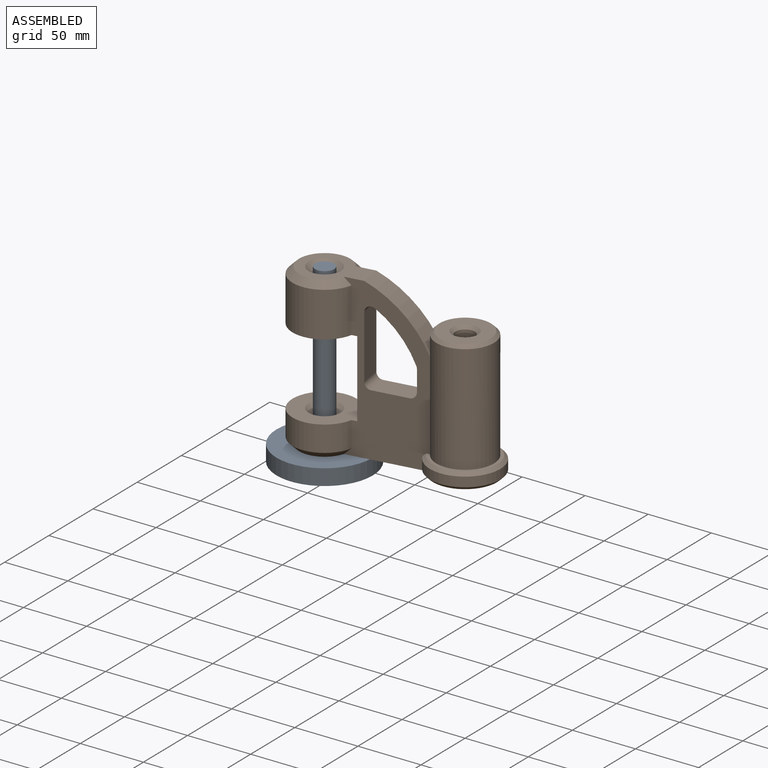
[diagram: assembled view]
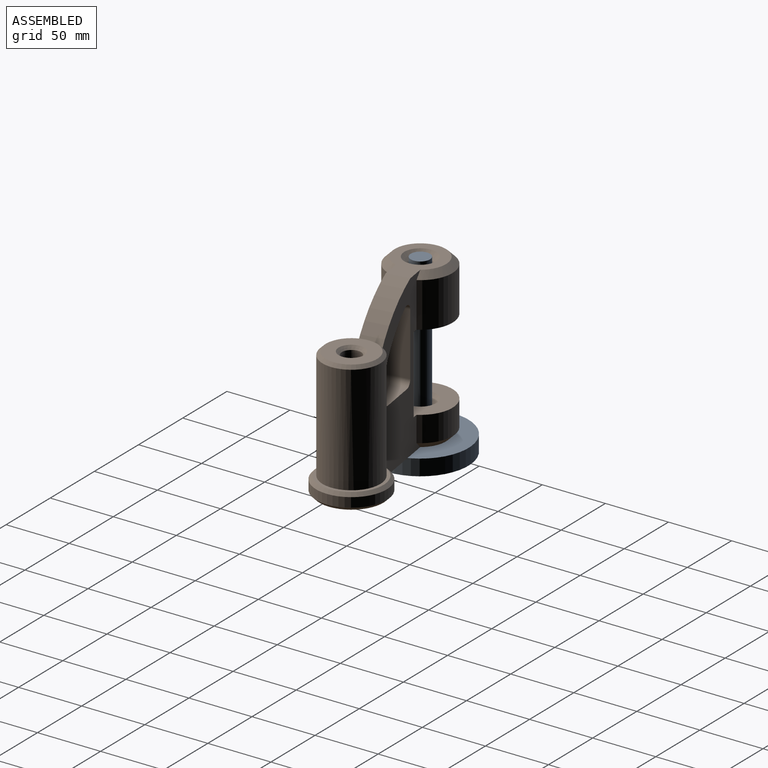
[diagram: assembled view, second angle]
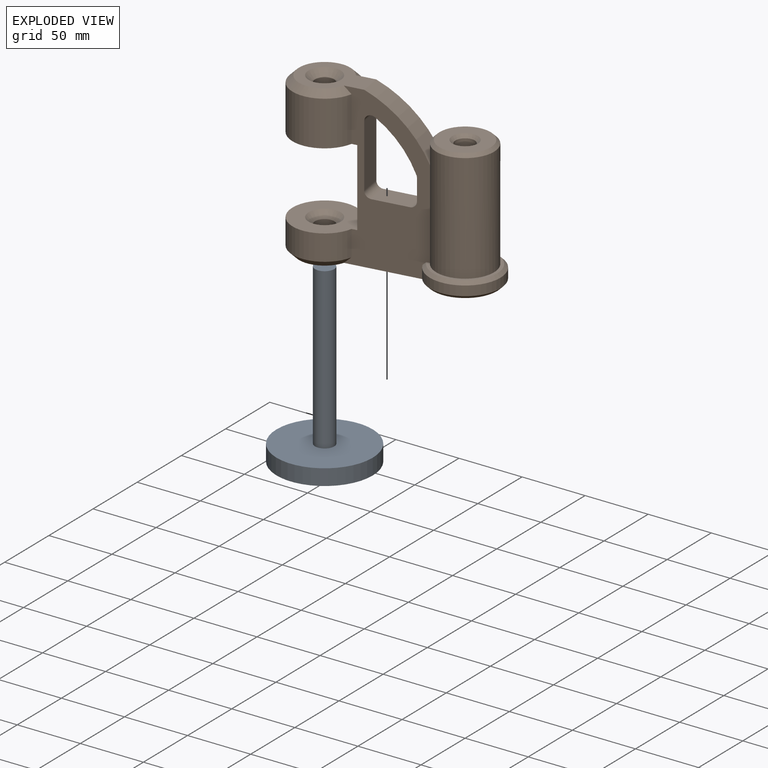
[diagram: exploded view]
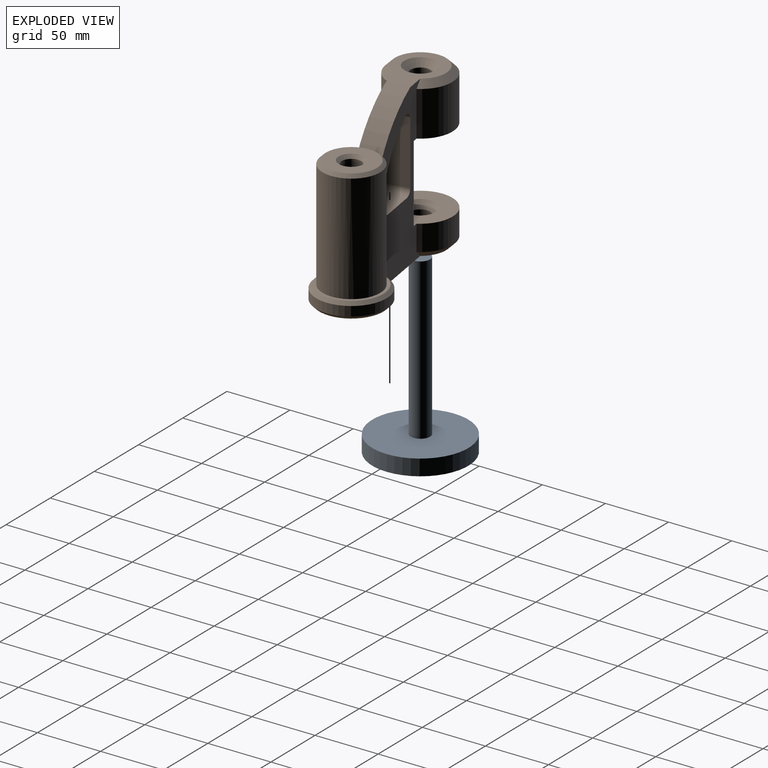
[diagram: exploded view, second angle]
ASSEMBLY  parts=2 mates=2
PART A: 5 faces, bbox 76.2x76.2x139.7 mm
  f0: cylinder r=7.62mm len=127mm, axis (0,0,-1), area 6080.5mm2, adj f1,f3
  f1: plane 15.24x15.24mm, normal (0,0,1), area 182.4mm2, adj f0
  f2: cylinder r=38.1mm len=76.2mm, axis (0,0,-1), area 3040.2mm2, adj f3,f4
  f3: plane 76.2x76.2mm, normal (0,0,1), area 4378mm2, adj f0,f2
  f4: plane 76.2x76.2mm, normal (0,0,-1), area 4560.4mm2, adj f2
PART B: 36 faces, bbox 155x55.9x127 mm
  f0: plane 127.04x62.31mm, normal (0,-1,0), area 4321.2mm2, adj f3,f5,f6,f7,f9,f11,f12,f13
  f1: plane 127.04x62.31mm, normal (0,1,0), area 4321.2mm2, adj f3,f5,f6,f7,f9,f11,f12,f13
  f2: cylinder r=7.62mm len=15.24mm, axis (0,0,-1), area 729.7mm2, adj f30,f32
  f3: cylinder r=25.4mm len=50.8mm, axis (0,0,-1), area 2873.8mm2, adj f0,f1,f17,f31
  f4: cylinder r=7.62mm len=30.48mm, axis (0,0,-1), area 1459.3mm2, adj f33,f34
  f5: cylinder r=25.4mm len=50.8mm, axis (0,0,-1), area 5029.2mm2, adj f0,f1,f18,f35
  f6: plane 53.34x40.64mm, normal (0,0,1), area 1028.2mm2, adj f0,f1,f11,f34,f35
  f7: plane 147.32x50.8mm, normal (0,0,-1), area 3507.8mm2, adj f0,f1,f25,f27,f31,f32
  f8: cylinder r=7.62mm len=96.52mm, axis (0,0,-1), area 4621.2mm2, adj f27,f28
  f9: cylinder r=22.86mm len=86.36mm, axis (0,0,-1), area 11079.6mm2, adj f0,f1,f11,f23,f29
  f10: plane 40.64x40.64mm, normal (0,0,1), area 972.9mm2, adj f28,f29
  f11: cylinder r=88.9mm len=47.52mm, axis (0,1,0), area 1132.6mm2, adj f0,f1,f6,f9
  f12: plane 17.78x17.02mm, normal (-1,0,0), area 302.5mm2, adj f0,f1,f19,f22
  f13: plane 27.94x17.78mm, normal (0,0,1), area 496.8mm2, adj f0,f1,f19,f20
  f14: plane 49.87x17.78mm, normal (1,0,0), area 886.6mm2, adj f0,f1,f20,f21
  f15: cylinder r=76.2mm len=35.2mm, axis (0,1,0), area 834.7mm2, adj f0,f1,f21,f22
  f16: plane 60.96x17.78mm, normal (-1,0,0), area 1083.9mm2, adj f0,f1,f17,f18
  f17: plane 53.34x50.8mm, normal (0,0,1), area 1574.7mm2, adj f0,f1,f3,f16,f30
  f18: plane 53.34x50.8mm, normal (0,0,-1), area 1574.7mm2, adj f0,f1,f5,f16,f33
  f19: cylinder r=5.08mm len=17.78mm, axis (0,-1,0), area 141.9mm2, adj f0,f1,f12,f13
  f20: cylinder r=5.08mm len=17.78mm, axis (0,-1,0), area 141.9mm2, adj f0,f1,f13,f14
  f21: cylinder r=5.08mm len=17.78mm, axis (0,1,0), area 192.3mm2, adj f0,f1,f14,f15
  f22: cylinder r=5.08mm len=17.78mm, axis (0,1,0), area 35.8mm2, adj f0,f1,f12,f15
  f23: plane 50.8x49.19mm, normal (0,0,1), area 338.8mm2, adj f0,f1,f9,f26
  f24: cylinder r=27.94mm len=55.88mm, axis (0,0,-1), area 1199.8mm2, adj f0,f1,f25,f26
  f25: cone r=27.94mm half-angle=45deg, axis (0,0,1), area 536.7mm2, adj f0,f1,f7,f24
  f26: cone r=25.4mm half-angle=45deg, axis (0,0,-1), area 536.7mm2, adj f0,f1,f23,f24
  f27: cone r=10.16mm half-angle=45deg, axis (0,0,-1), area 200.6mm2, adj f7,f8
  f28: cone r=7.62mm half-angle=45deg, axis (0,0,1), area 200.6mm2, adj f8,f10
  f29: cone r=20.32mm half-angle=45deg, axis (0,0,-1), area 487.3mm2, adj f9,f10
  f30: cone r=7.62mm half-angle=45deg, axis (0,0,1), area 458.6mm2, adj f2,f17
  f31: cone r=25.4mm half-angle=45deg, axis (0,0,1), area 900.6mm2, adj f0,f1,f3,f7
  f32: cone r=12.7mm half-angle=45deg, axis (0,0,-1), area 458.6mm2, adj f2,f7
  f33: cone r=12.7mm half-angle=45deg, axis (0,0,-1), area 458.6mm2, adj f4,f18
  f34: cone r=7.62mm half-angle=45deg, axis (0,0,1), area 458.6mm2, adj f4,f6
  f35: cone r=20.32mm half-angle=45deg, axis (0,0,-1), area 900.6mm2, adj f0,f1,f5,f6
PLACE A t=(12.56,37.24,-18.08)mm fixed
PLACE B rot(axis=(0,0,1),8.9deg) t=(12.56,37.24,-5.38)mm
MATE cylindrical A.f0 <-> B.f2  axis (0,0,-1) through (12.56,37.24,58.12)mm
MATE planar A.f0 <-> B.f2  axis (0,0,-1) through (12.56,37.24,-5.38)mm
